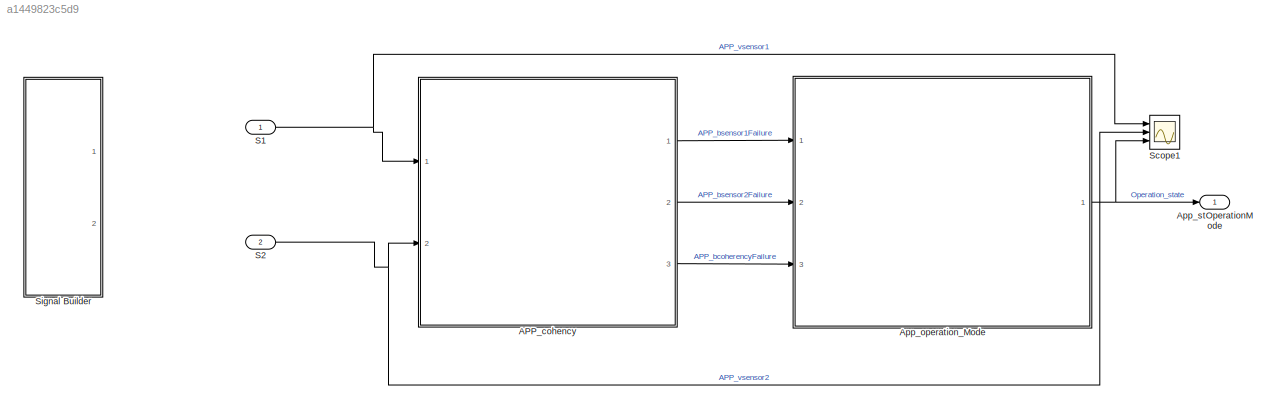
MODEL slx_a1449823c5d9
KIND model
CONFIG AbsTol = auto
CONFIG EnableMultiTasking = on
CONFIG FixedStep = 1e-3
CONFIG MaxStep = auto
CONFIG MinStep = auto
CONFIG RelTol = 1e-3
CONFIG SampleTimeConstraint = Unconstrained
CONFIG SolverName = FixedStepDiscrete
CONFIG StartTime = 0.0
CONFIG StopTime = 12
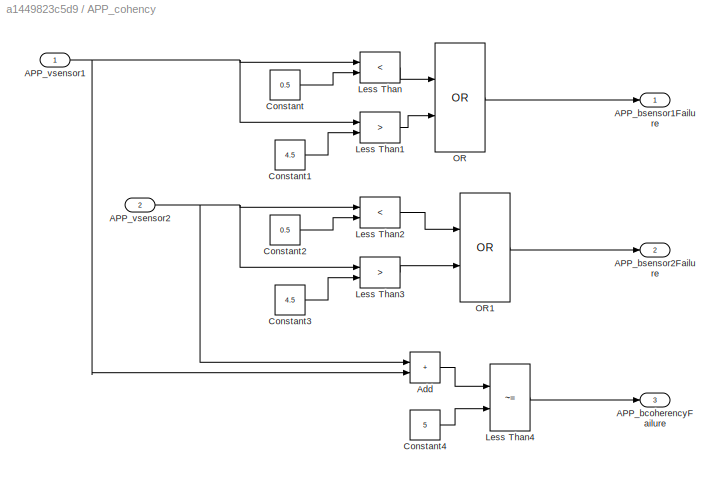
BLOCK [SubSystem] APP_cohency
  Ports = [2, 3]
  RequestExecContextInheritance = off
BLOCK [Outport] APP_cohency/APP_bcoherencyFailure
  Port = 3
BLOCK [Outport] APP_cohency/APP_bsensor1Failure
BLOCK [Outport] APP_cohency/APP_bsensor2Failure
  Port = 2
BLOCK [Inport] APP_cohency/APP_vsensor1
BLOCK [Inport] APP_cohency/APP_vsensor2
  Port = 2
BLOCK [Sum] APP_cohency/Add
  IconShape = rectangular
  Ports = [2, 1]
BLOCK [Constant] APP_cohency/Constant
  Value = 0.5
BLOCK [Constant] APP_cohency/Constant1
  Value = 4.5
BLOCK [Constant] APP_cohency/Constant2
  Value = 0.5
BLOCK [Constant] APP_cohency/Constant3
  Value = 4.5
BLOCK [Constant] APP_cohency/Constant4
  Value = 5
BLOCK [RelationalOperator] APP_cohency/Less Than
  InputSameDT = off
  Operator = <
  OutDataTypeStr = boolean
  Ports = [2, 1]
  RndMeth = Simplest
BLOCK [RelationalOperator] APP_cohency/Less Than1
  InputSameDT = off
  Operator = >
  OutDataTypeStr = boolean
  Ports = [2, 1]
  RndMeth = Simplest
BLOCK [RelationalOperator] APP_cohency/Less Than2
  InputSameDT = off
  Operator = <
  OutDataTypeStr = boolean
  Ports = [2, 1]
  RndMeth = Simplest
BLOCK [RelationalOperator] APP_cohency/Less Than3
  InputSameDT = off
  Operator = >
  OutDataTypeStr = boolean
  Ports = [2, 1]
  RndMeth = Simplest
BLOCK [RelationalOperator] APP_cohency/Less Than4
  InputSameDT = off
  Operator = ~=
  OutDataTypeStr = boolean
  Ports = [2, 1]
  RndMeth = Simplest
BLOCK [Logic] APP_cohency/OR
  AllPortsSameDT = off
  Operator = OR
  OutDataTypeStr = boolean
  Ports = [2, 1]
BLOCK [Logic] APP_cohency/OR1
  AllPortsSameDT = off
  Operator = OR
  OutDataTypeStr = boolean
  Ports = [2, 1]
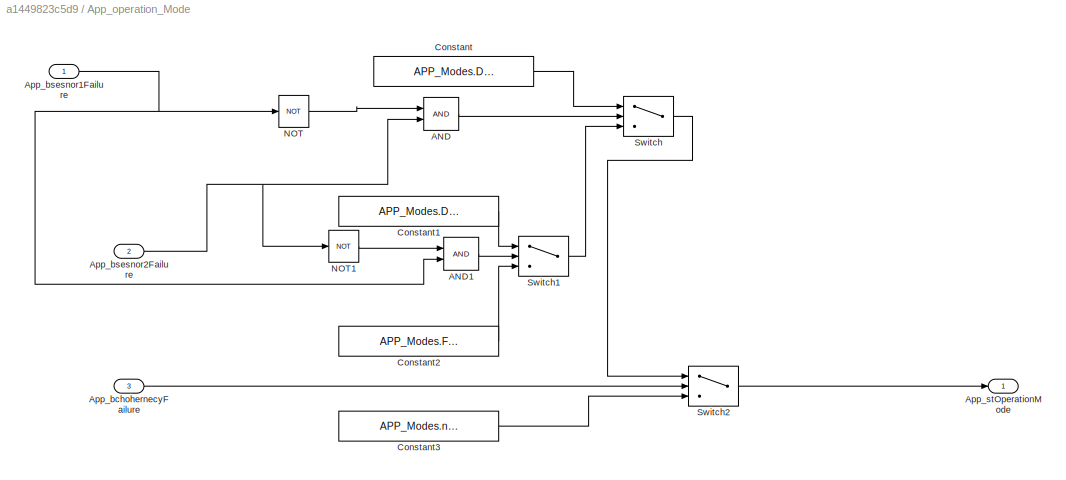
BLOCK [SubSystem] App_operation_Mode
  Ports = [3, 1]
  RequestExecContextInheritance = off
BLOCK [Logic] App_operation_Mode/AND
  AllPortsSameDT = off
  OutDataTypeStr = boolean
  Ports = [2, 1]
BLOCK [Logic] App_operation_Mode/AND1
  AllPortsSameDT = off
  OutDataTypeStr = boolean
  Ports = [2, 1]
BLOCK [Inport] App_operation_Mode/App_bchohernecyFailure
  Port = 3
BLOCK [Inport] App_operation_Mode/App_bsesnor1Failure
BLOCK [Inport] App_operation_Mode/App_bsesnor2Failure
  Port = 2
BLOCK [Outport] App_operation_Mode/App_stOperationMode
  OutDataTypeStr = Enum: APP_Modes
BLOCK [Constant] App_operation_Mode/Constant
  Value = APP_Modes.Downsensor_sens_1
BLOCK [Constant] App_operation_Mode/Constant1
  Value = APP_Modes.Downsensor_sens_2
BLOCK [Constant] App_operation_Mode/Constant2
  Value = APP_Modes.Failure
BLOCK [Constant] App_operation_Mode/Constant3
  Value = APP_Modes.normal
BLOCK [Logic] App_operation_Mode/NOT
  AllPortsSameDT = off
  Operator = NOT
  OutDataTypeStr = boolean
  Ports = [1, 1]
BLOCK [Logic] App_operation_Mode/NOT1
  AllPortsSameDT = off
  Operator = NOT
  OutDataTypeStr = boolean
  Ports = [1, 1]
BLOCK [Switch] App_operation_Mode/Switch
  Criteria = u2 ~= 0
  InputSameDT = off
  SaturateOnIntegerOverflow = off
BLOCK [Switch] App_operation_Mode/Switch1
  Criteria = u2 ~= 0
  InputSameDT = off
  SaturateOnIntegerOverflow = off
BLOCK [Switch] App_operation_Mode/Switch2
  Criteria = u2 ~= 0
  InputSameDT = off
  SaturateOnIntegerOverflow = off
BLOCK [Outport] App_stOperationMode
BLOCK [Inport] S1
BLOCK [Inport] S2
  Port = 2
BLOCK [Scope] Scope1
  Floating = off
  NumInputPorts = 3
  Ports = [3]
  ScopeSpecificationString = Simulink.scopes.TimeScopeBlockCfg('CurrentConfiguration', extmgr.ConfigurationSet(extmgr.Configuration('Core','General UI',true),extmgr.Configuration('Core','Source UI',true),extmgr.Configuration('Sources','WiredSimulink',true,'DataLoggingVariableName','ScopeData1'),extmgr.Configuration('Visuals','Time Domain',true,'SerializedDisplays',{struct('MinYLimReal','-1.75','MaxYLimReal','5.75','YLabelReal...<+2732ch>
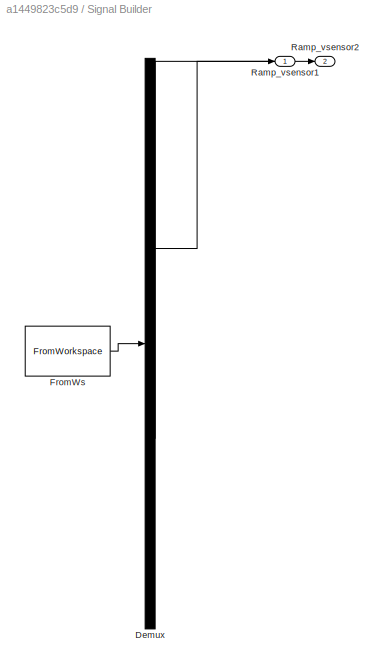
BLOCK [SubSystem] Signal Builder
  ClipboardFcn = sigbuilder_block('clipboard');
  CloseFcn = sigbuilder_block('close');
  Commented = on
  ContinueFcn = sigbuilder_block('continue');
  CopyFcn = sigbuilder_block('copy');
  DeleteFcn = sigbuilder_block('delete');
  LoadFcn = sigbuilder_block('load');
  MaskHideContents = on
  ModelCloseFcn = sigbuilder_block('modelClose');
  NameChangeFcn = sigbuilder_block('namechange');
  OpenFcn = sigbuilder_block('open',[437.6 199.2 550.4 400 ]);
  PauseFcn = sigbuilder_block('pause');
  Ports = [0, 2]
  PreSaveFcn = sigbuilder_block('preSave');
  RequestExecContextInheritance = off
  StartFcn = sigbuilder_block('start');
  StopFcn = sigbuilder_block('stop');
  Tag = STV Subsys
BLOCK [Demux] Signal Builder/Demux
  DisplayOption = none
  Outputs = 2
  Ports = [1, 2]
  Tag = STV Demux
BLOCK [FromWorkspace] Signal Builder/FromWs
  Tag = STV FromWs
  VariableName = tuvar
BLOCK [Outport] Signal Builder/Ramp_vsensor1
  Tag = STV Outport
BLOCK [Outport] Signal Builder/Ramp_vsensor2
  Port = 2
  Tag = STV Outport
NET APP_cohency/APP_vsensor1:1 -> APP_cohency/Add:2, APP_cohency/Less Than1:1, APP_cohency/Less Than:1
NET APP_cohency/APP_vsensor2:1 -> APP_cohency/Add:1, APP_cohency/Less Than2:1, APP_cohency/Less Than3:1
LINE APP_cohency/Add:1 -> APP_cohency/Less Than4:1
LINE APP_cohency/Constant1:1 -> APP_cohency/Less Than1:2
LINE APP_cohency/Constant2:1 -> APP_cohency/Less Than2:2
LINE APP_cohency/Constant3:1 -> APP_cohency/Less Than3:2
LINE APP_cohency/Constant4:1 -> APP_cohency/Less Than4:2
LINE APP_cohency/Constant:1 -> APP_cohency/Less Than:2
LINE APP_cohency/Less Than1:1 -> APP_cohency/OR:2
LINE APP_cohency/Less Than2:1 -> APP_cohency/OR1:1
LINE APP_cohency/Less Than3:1 -> APP_cohency/OR1:2
LINE APP_cohency/Less Than4:1 -> APP_cohency/APP_bcoherencyFailure:1
LINE APP_cohency/Less Than:1 -> APP_cohency/OR:1
LINE APP_cohency/OR1:1 -> APP_cohency/APP_bsensor2Failure:1
LINE APP_cohency/OR:1 -> APP_cohency/APP_bsensor1Failure:1
LINE APP_cohency:1 -> App_operation_Mode:1
LINE APP_cohency:2 -> App_operation_Mode:2
LINE APP_cohency:3 -> App_operation_Mode:3
LINE App_operation_Mode/AND1:1 -> App_operation_Mode/Switch1:2
LINE App_operation_Mode/AND:1 -> App_operation_Mode/Switch:2
LINE App_operation_Mode/App_bchohernecyFailure:1 -> App_operation_Mode/Switch2:2
NET App_operation_Mode/App_bsesnor1Failure:1 -> App_operation_Mode/AND1:2, App_operation_Mode/NOT:1
NET App_operation_Mode/App_bsesnor2Failure:1 -> App_operation_Mode/AND:2, App_operation_Mode/NOT1:1
LINE App_operation_Mode/Constant1:1 -> App_operation_Mode/Switch1:1
LINE App_operation_Mode/Constant2:1 -> App_operation_Mode/Switch1:3
LINE App_operation_Mode/Constant3:1 -> App_operation_Mode/Switch2:3
LINE App_operation_Mode/Constant:1 -> App_operation_Mode/Switch:1
LINE App_operation_Mode/NOT1:1 -> App_operation_Mode/AND1:1
LINE App_operation_Mode/NOT:1 -> App_operation_Mode/AND:1
LINE App_operation_Mode/Switch1:1 -> App_operation_Mode/Switch:3
LINE App_operation_Mode/Switch2:1 -> App_operation_Mode/App_stOperationMode:1
LINE App_operation_Mode/Switch:1 -> App_operation_Mode/Switch2:1
NET App_operation_Mode:1 -> App_stOperationMode:1, Scope1:3
NET S1:1 -> APP_cohency:1, Scope1:1
NET S2:1 -> APP_cohency:2, Scope1:2
note: NET lines group one-source signal fan-out (src -> all destinations, sorted); 1:1 wires keep LINE
